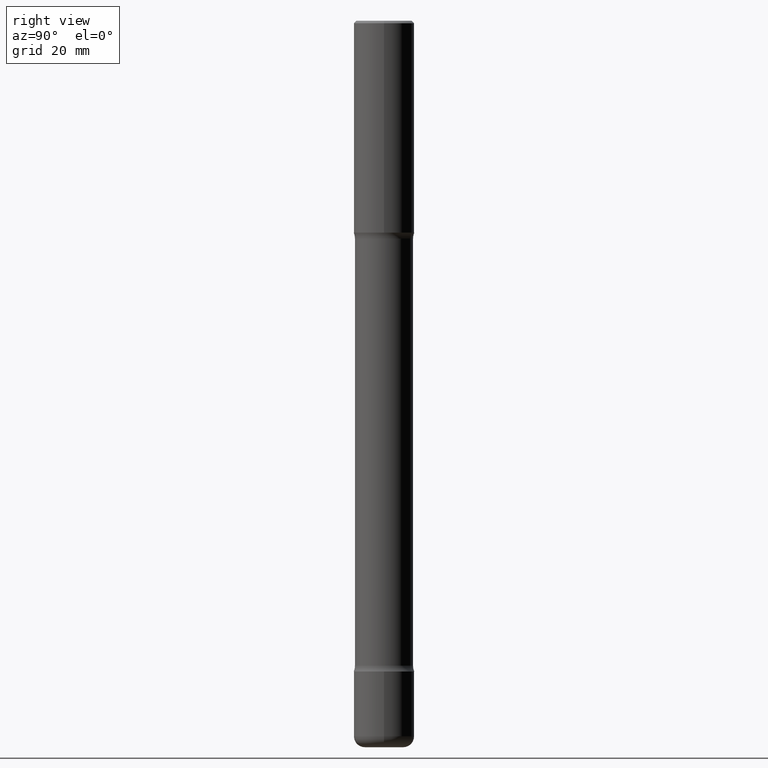
[diagram: clean part render]
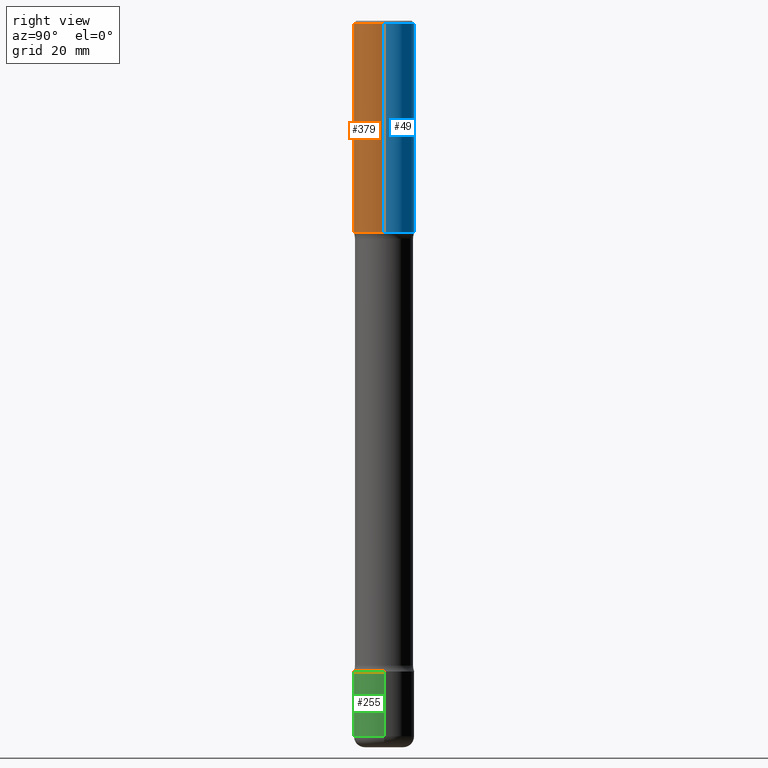
[diagram: same view with three faces highlighted in distinct colors, each labeled with its STEP entity id]
A machine part, right view with three faces highlighted in distinct colors.
Their STEP definitions:

[orange] entity #379 — the highlighted cylindrical surface (edge-blend (fillet) strip) has radius 6.35 mm, axis along (-0, 0, 1).
#15 = EDGE_CURVE ( 'NONE', #228, #421, #285, .T. ) ;
#56 = EDGE_CURVE ( 'NONE', #173, #421, #467, .T. ) ;
#62 = EDGE_CURVE ( 'NONE', #302, #228, #96, .T. ) ;
#65 = DIRECTION ( 'NONE',  ( -2.445468806185136597E-29, 3.491481338843145583E-15, 1.000000000000000000 ) ) ;
#81 = CARTESIAN_POINT ( 'NONE',  ( 0.2500000000000001110, -1.784954126219746583E-15, -0.02000000000000005246 ) ) ;
#83 = EDGE_LOOP ( 'NONE', ( #485, #120, #547, #188 ) ) ;
#93 = EDGE_CURVE ( 'NONE', #302, #173, #555, .T. ) ;
#96 = CIRCLE ( 'NONE', #384, 0.2500000000000003331 ) ;
#101 = CARTESIAN_POINT ( 'NONE',  ( -0.2500000000000001110, 1.675911042644704563E-15, -0.02000000000000005246 ) ) ;
#104 = CARTESIAN_POINT ( 'NONE',  ( -0.2500000000000003331, -1.313604145475932337E-15, -1.750000000000001332 ) ) ;
#120 = ORIENTED_EDGE ( 'NONE', *, *, #62, .T. ) ;
#124 = FACE_OUTER_BOUND ( 'NONE', #83, .T. ) ;
#134 = VECTOR ( 'NONE', #263, 39.37007874015748143 ) ;
#161 = AXIS2_PLACEMENT_3D ( 'NONE', #470, #65, #219 ) ;
#173 = VERTEX_POINT ( 'NONE', #101 ) ;
#187 = DIRECTION ( 'NONE',  ( -2.445468806185136597E-29, 3.491481338843145583E-15, 1.000000000000000000 ) ) ;
#188 = ORIENTED_EDGE ( 'NONE', *, *, #56, .F. ) ;
#206 = DIRECTION ( 'NONE',  ( -2.445468806185136877E-29, 3.491481338843145188E-15, 1.000000000000000000 ) ) ;
#219 = DIRECTION ( 'NONE',  ( 1.000000000000000000, -6.982962677686267499E-15, 4.876176775795936353E-29 ) ) ;
#221 = CARTESIAN_POINT ( 'NONE',  ( -0.2500000000000002220, 1.776356839400252042E-15, -1.229733772563727566E-29 ) ) ;
#228 = VERTEX_POINT ( 'NONE', #394 ) ;
#263 = DIRECTION ( 'NONE',  ( -2.445468806185136877E-29, 3.491481338843145188E-15, 1.000000000000000000 ) ) ;
#284 = DIRECTION ( 'NONE',  ( 1.000000000000000000, -6.982962677686267499E-15, 0.000000000000000000 ) ) ;
#285 = LINE ( 'NONE', #449, #497 ) ;
#302 = VERTEX_POINT ( 'NONE', #104 ) ;
#309 = CYLINDRICAL_SURFACE ( 'NONE', #161, 0.2500000000000002220 ) ;
#341 = AXIS2_PLACEMENT_3D ( 'NONE', #439, #187, #284 ) ;
#379 = ADVANCED_FACE ( 'NONE', ( #124 ), #309, .T. ) ;
#384 = AXIS2_PLACEMENT_3D ( 'NONE', #483, #487, #477 ) ;
#394 = CARTESIAN_POINT ( 'NONE',  ( 0.2500000000000003331, -7.855833012397078448E-15, -1.750000000000001332 ) ) ;
#421 = VERTEX_POINT ( 'NONE', #81 ) ;
#439 = CARTESIAN_POINT ( 'NONE',  ( 4.890937612370285420E-31, -6.982962677686308865E-17, -0.02000000000000005246 ) ) ;
#449 = CARTESIAN_POINT ( 'NONE',  ( 0.2500000000000002220, -1.745740669421568453E-15, 1.219044193948985209E-29 ) ) ;
#467 = CIRCLE ( 'NONE', #341, 0.2500000000000001110 ) ;
#470 = CARTESIAN_POINT ( 'NONE',  ( 0.000000000000000000, 0.000000000000000000, 0.000000000000000000 ) ) ;
#477 = DIRECTION ( 'NONE',  ( 1.000000000000000000, -6.982962677686269077E-15, 0.000000000000000000 ) ) ;
#483 = CARTESIAN_POINT ( 'NONE',  ( 4.279570410823991847E-29, -6.110092342975509404E-15, -1.750000000000001332 ) ) ;
#485 = ORIENTED_EDGE ( 'NONE', *, *, #93, .F. ) ;
#487 = DIRECTION ( 'NONE',  ( -2.445468806185136597E-29, 3.491481338843145583E-15, 1.000000000000000000 ) ) ;
#497 = VECTOR ( 'NONE', #206, 39.37007874015748143 ) ;
#547 = ORIENTED_EDGE ( 'NONE', *, *, #15, .T. ) ;
#555 = LINE ( 'NONE', #221, #134 ) ;

[blue] entity #49 — the highlighted cylindrical surface (edge-blend (fillet) strip) has radius 6.35 mm, axis along (-0, 0, 1).
#4 = CARTESIAN_POINT ( 'NONE',  ( 4.890937612370285420E-31, -6.982962677686308865E-17, -0.02000000000000005246 ) ) ;
#15 = EDGE_CURVE ( 'NONE', #228, #421, #285, .T. ) ;
#36 = ORIENTED_EDGE ( 'NONE', *, *, #399, .T. ) ;
#49 = ADVANCED_FACE ( 'NONE', ( #366 ), #254, .T. ) ;
#69 = ORIENTED_EDGE ( 'NONE', *, *, #232, .F. ) ;
#75 = CIRCLE ( 'NONE', #526, 0.2500000000000003331 ) ;
#81 = CARTESIAN_POINT ( 'NONE',  ( 0.2500000000000001110, -1.784954126219746583E-15, -0.02000000000000005246 ) ) ;
#93 = EDGE_CURVE ( 'NONE', #302, #173, #555, .T. ) ;
#101 = CARTESIAN_POINT ( 'NONE',  ( -0.2500000000000001110, 1.675911042644704563E-15, -0.02000000000000005246 ) ) ;
#104 = CARTESIAN_POINT ( 'NONE',  ( -0.2500000000000003331, -1.313604145475932337E-15, -1.750000000000001332 ) ) ;
#134 = VECTOR ( 'NONE', #263, 39.37007874015748143 ) ;
#148 = CARTESIAN_POINT ( 'NONE',  ( 0.000000000000000000, 0.000000000000000000, 0.000000000000000000 ) ) ;
#165 = EDGE_LOOP ( 'NONE', ( #36, #436, #69, #191 ) ) ;
#167 = AXIS2_PLACEMENT_3D ( 'NONE', #4, #184, #354 ) ;
#173 = VERTEX_POINT ( 'NONE', #101 ) ;
#184 = DIRECTION ( 'NONE',  ( -2.445468806185136597E-29, 3.491481338843145583E-15, 1.000000000000000000 ) ) ;
#191 = ORIENTED_EDGE ( 'NONE', *, *, #15, .F. ) ;
#206 = DIRECTION ( 'NONE',  ( -2.445468806185136877E-29, 3.491481338843145188E-15, 1.000000000000000000 ) ) ;
#221 = CARTESIAN_POINT ( 'NONE',  ( -0.2500000000000002220, 1.776356839400252042E-15, -1.229733772563727566E-29 ) ) ;
#228 = VERTEX_POINT ( 'NONE', #394 ) ;
#232 = EDGE_CURVE ( 'NONE', #421, #173, #453, .T. ) ;
#241 = DIRECTION ( 'NONE',  ( 1.000000000000000000, -6.982962677686269077E-15, 0.000000000000000000 ) ) ;
#254 = CYLINDRICAL_SURFACE ( 'NONE', #504, 0.2500000000000002220 ) ;
#263 = DIRECTION ( 'NONE',  ( -2.445468806185136877E-29, 3.491481338843145188E-15, 1.000000000000000000 ) ) ;
#285 = LINE ( 'NONE', #449, #497 ) ;
#302 = VERTEX_POINT ( 'NONE', #104 ) ;
#324 = DIRECTION ( 'NONE',  ( 1.000000000000000000, -6.982962677686267499E-15, 4.876176775795936353E-29 ) ) ;
#354 = DIRECTION ( 'NONE',  ( 1.000000000000000000, -6.982962677686267499E-15, 0.000000000000000000 ) ) ;
#366 = FACE_OUTER_BOUND ( 'NONE', #165, .T. ) ;
#394 = CARTESIAN_POINT ( 'NONE',  ( 0.2500000000000003331, -7.855833012397078448E-15, -1.750000000000001332 ) ) ;
#399 = EDGE_CURVE ( 'NONE', #228, #302, #75, .T. ) ;
#404 = DIRECTION ( 'NONE',  ( -2.445468806185136597E-29, 3.491481338843145583E-15, 1.000000000000000000 ) ) ;
#421 = VERTEX_POINT ( 'NONE', #81 ) ;
#436 = ORIENTED_EDGE ( 'NONE', *, *, #93, .T. ) ;
#437 = CARTESIAN_POINT ( 'NONE',  ( 4.279570410823991847E-29, -6.110092342975509404E-15, -1.750000000000001332 ) ) ;
#449 = CARTESIAN_POINT ( 'NONE',  ( 0.2500000000000002220, -1.745740669421568453E-15, 1.219044193948985209E-29 ) ) ;
#453 = CIRCLE ( 'NONE', #167, 0.2500000000000001110 ) ;
#489 = DIRECTION ( 'NONE',  ( -2.445468806185136597E-29, 3.491481338843145583E-15, 1.000000000000000000 ) ) ;
#497 = VECTOR ( 'NONE', #206, 39.37007874015748143 ) ;
#504 = AXIS2_PLACEMENT_3D ( 'NONE', #148, #489, #324 ) ;
#526 = AXIS2_PLACEMENT_3D ( 'NONE', #437, #404, #241 ) ;
#555 = LINE ( 'NONE', #221, #134 ) ;

[green] entity #255 — the highlighted cylindrical surface (edge-blend (fillet) strip) has radius 6.35 mm, axis along (-0, 0, 1).
#8 = ORIENTED_EDGE ( 'NONE', *, *, #151, .F. ) ;
#38 = LINE ( 'NONE', #518, #51 ) ;
#51 = VECTOR ( 'NONE', #482, 39.37007874015748143 ) ;
#61 = CYLINDRICAL_SURFACE ( 'NONE', #227, 0.2500000000000003886 ) ;
#95 = CARTESIAN_POINT ( 'NONE',  ( 0.2500000000000006661, -2.238039538198456243E-14, -5.910000000000001030 ) ) ;
#106 = AXIS2_PLACEMENT_3D ( 'NONE', #270, #315, #431 ) ;
#114 = ORIENTED_EDGE ( 'NONE', *, *, #537, .T. ) ;
#116 = DIRECTION ( 'NONE',  ( -2.445468806185136597E-29, 3.491481338843145583E-15, 1.000000000000000000 ) ) ;
#151 = EDGE_CURVE ( 'NONE', #387, #355, #425, .T. ) ;
#164 = ORIENTED_EDGE ( 'NONE', *, *, #210, .F. ) ;
#169 = CIRCLE ( 'NONE', #106, 0.2500000000000005551 ) ;
#176 = CARTESIAN_POINT ( 'NONE',  ( 0.2500000000000002776, -2.051245286570348262E-14, -5.375000000000001776 ) ) ;
#195 = LINE ( 'NONE', #398, #318 ) ;
#210 = EDGE_CURVE ( 'NONE', #521, #387, #195, .T. ) ;
#227 = AXIS2_PLACEMENT_3D ( 'NONE', #415, #380, #418 ) ;
#245 = CARTESIAN_POINT ( 'NONE',  ( -0.2500000000000002776, -1.792432661502220065E-14, -5.375000000000001776 ) ) ;
#255 = ADVANCED_FACE ( 'NONE', ( #320 ), #61, .T. ) ;
#259 = AXIS2_PLACEMENT_3D ( 'NONE', #416, #116, #463 ) ;
#270 = CARTESIAN_POINT ( 'NONE',  ( 1.445272064455416016E-28, -2.063465471256299260E-14, -5.910000000000001030 ) ) ;
#275 = ORIENTED_EDGE ( 'NONE', *, *, #422, .T. ) ;
#315 = DIRECTION ( 'NONE',  ( -2.445468806185136597E-29, 3.491481338843145583E-15, 1.000000000000000000 ) ) ;
#317 = EDGE_LOOP ( 'NONE', ( #164, #275, #114, #8 ) ) ;
#318 = VECTOR ( 'NONE', #488, 39.37007874015748143 ) ;
#320 = FACE_OUTER_BOUND ( 'NONE', #317, .T. ) ;
#328 = CARTESIAN_POINT ( 'NONE',  ( -0.2500000000000006661, -1.885829787316274213E-14, -5.910000000000001030 ) ) ;
#355 = VERTEX_POINT ( 'NONE', #176 ) ;
#380 = DIRECTION ( 'NONE',  ( -2.445468806185136597E-29, 3.491481338843145583E-15, 1.000000000000000000 ) ) ;
#387 = VERTEX_POINT ( 'NONE', #245 ) ;
#398 = CARTESIAN_POINT ( 'NONE',  ( -0.2500000000000003886, 1.776356839400253226E-15, -1.229733772563728407E-29 ) ) ;
#415 = CARTESIAN_POINT ( 'NONE',  ( 0.000000000000000000, 0.000000000000000000, 0.000000000000000000 ) ) ;
#416 = CARTESIAN_POINT ( 'NONE',  ( 1.314439483324511369E-28, -1.876671219628191278E-14, -5.375000000000001776 ) ) ;
#418 = DIRECTION ( 'NONE',  ( 1.000000000000000000, -6.982962677686267499E-15, 4.876176775795935793E-29 ) ) ;
#422 = EDGE_CURVE ( 'NONE', #521, #523, #169, .T. ) ;
#425 = CIRCLE ( 'NONE', #259, 0.2500000000000002776 ) ;
#431 = DIRECTION ( 'NONE',  ( 1.000000000000000000, -6.982962677686262766E-15, 0.000000000000000000 ) ) ;
#463 = DIRECTION ( 'NONE',  ( 1.000000000000000000, -6.982962677686270655E-15, 0.000000000000000000 ) ) ;
#482 = DIRECTION ( 'NONE',  ( -2.445468806185136877E-29, 3.491481338843145188E-15, 1.000000000000000000 ) ) ;
#488 = DIRECTION ( 'NONE',  ( -2.445468806185136877E-29, 3.491481338843145188E-15, 1.000000000000000000 ) ) ;
#518 = CARTESIAN_POINT ( 'NONE',  ( 0.2500000000000003886, -1.745740669421569636E-15, 1.219044193948985910E-29 ) ) ;
#521 = VERTEX_POINT ( 'NONE', #328 ) ;
#523 = VERTEX_POINT ( 'NONE', #95 ) ;
#537 = EDGE_CURVE ( 'NONE', #523, #355, #38, .T. ) ;